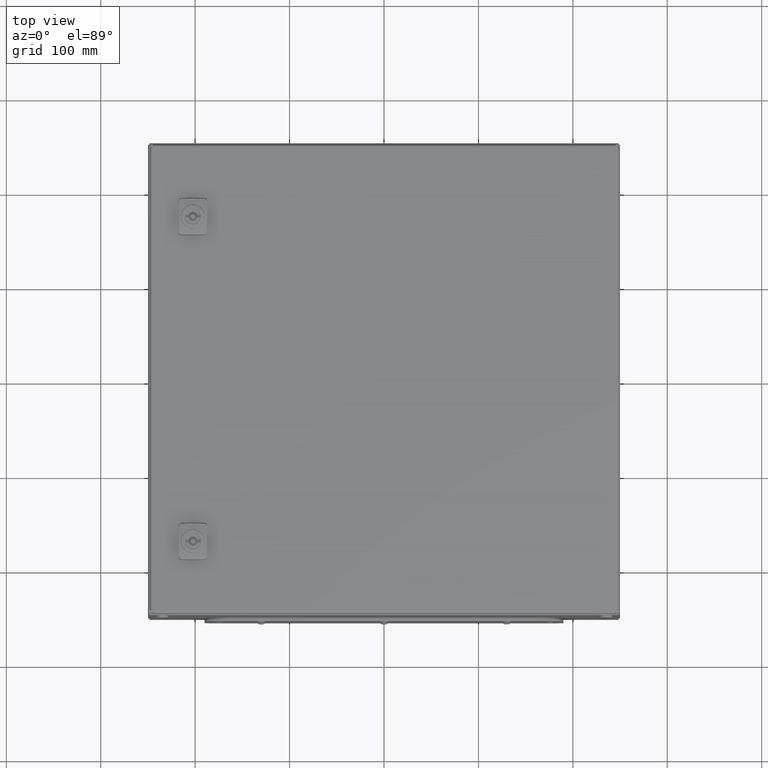
[diagram: clean part render]
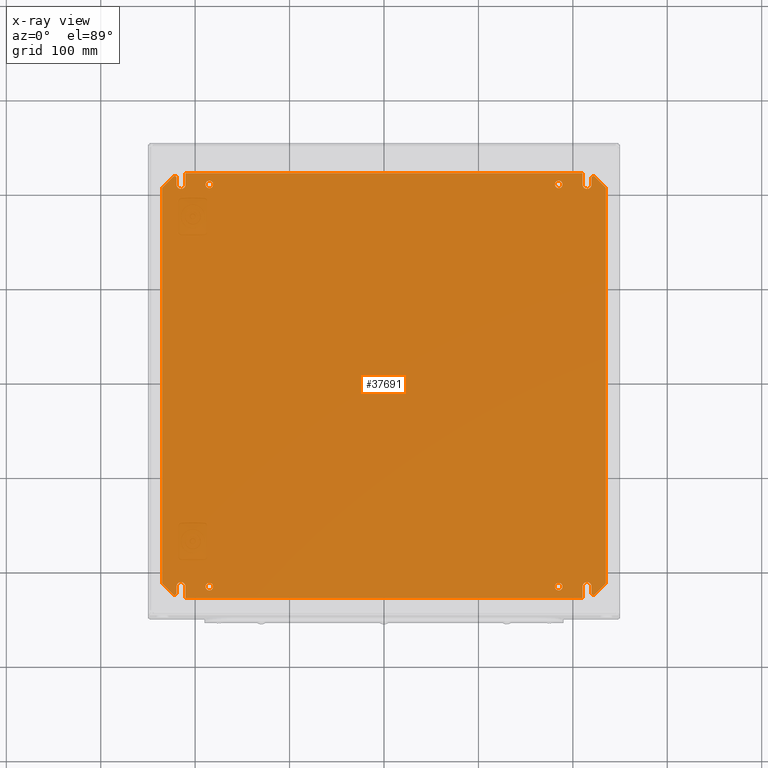
[diagram: x-ray — body ghosted, one internal face saturated and labeled with its STEP entity id]
A machine part, top view, then the same camera in x-ray: the body is ghosted and one INTERNAL B-rep face — a face not visible from any outside direction — is saturated and labeled: STEP entity #37691.
In plain terms, the highlighted planar face has unit normal (0, 0, 1).
Its self-contained STEP definition (entity closure, byte-faithful):
#9817 = CARTESIAN_POINT ( 'NONE',  ( -223.1642135623731900, -221.4142135623731100, 2.499999999997726300 ) ) ;
#12761 = VERTEX_POINT ( 'NONE', #9817 ) ;
#20797 = CARTESIAN_POINT ( 'NONE',  ( -181.0000000000000900, -212.9999999999999700, 2.499999999997726300 ) ) ;
#20798 = DIRECTION ( 'NONE',  ( -1.000000000000000000, 0.0000000000000000000, 0.0000000000000000000 ) ) ;
#20799 = DIRECTION ( 'NONE',  ( 0.0000000000000000000, 0.0000000000000000000, 1.000000000000000000 ) ) ;
#20800 = CARTESIAN_POINT ( 'NONE',  ( -185.0000000000000900, -212.9999999999999700, 2.499999999997726300 ) ) ;
#20801 = AXIS2_PLACEMENT_3D ( 'NONE', #20800, #20799, #20798 ) ;
#20802 = CIRCLE ( 'NONE', #20801, 4.000000000000003600 ) ;
#20803 = CARTESIAN_POINT ( 'NONE',  ( -189.0000000000000900, -212.9999999999999700, 2.499999999997726300 ) ) ;
#20805 = CARTESIAN_POINT ( 'NONE',  ( -219.7500000000000600, -219.9999999999999700, 2.499999999997726300 ) ) ;
#20806 = DIRECTION ( 'NONE',  ( 1.000000000000000000, 0.0000000000000000000, 0.0000000000000000000 ) ) ;
#20807 = DIRECTION ( 'NONE',  ( 0.0000000000000000000, 0.0000000000000000000, -1.000000000000000000 ) ) ;
#20808 = CARTESIAN_POINT ( 'NONE',  ( -221.7500000000000900, -219.9999999999999700, 2.499999999997726300 ) ) ;
#20809 = AXIS2_PLACEMENT_3D ( 'NONE', #20808, #20807, #20806 ) ;
#20810 = CIRCLE ( 'NONE', #20809, 2.000000000000029300 ) ;
#20826 = CARTESIAN_POINT ( 'NONE',  ( -181.0000000000000900, 212.9999999999999700, 2.499999999997726300 ) ) ;
#20827 = DIRECTION ( 'NONE',  ( -1.000000000000000000, 0.0000000000000000000, 0.0000000000000000000 ) ) ;
#20828 = DIRECTION ( 'NONE',  ( 0.0000000000000000000, 0.0000000000000000000, -1.000000000000000000 ) ) ;
#20829 = CARTESIAN_POINT ( 'NONE',  ( -185.0000000000000900, 212.9999999999999700, 2.499999999997726300 ) ) ;
#20830 = AXIS2_PLACEMENT_3D ( 'NONE', #20829, #20828, #20827 ) ;
#20831 = CIRCLE ( 'NONE', #20830, 4.000000000000003600 ) ;
#20832 = CARTESIAN_POINT ( 'NONE',  ( -189.0000000000000900, 212.9999999999999700, 2.499999999997726300 ) ) ;
#20837 = DIRECTION ( 'NONE',  ( 1.000000000000000000, 0.0000000000000000000, 0.0000000000000000000 ) ) ;
#20838 = DIRECTION ( 'NONE',  ( 0.0000000000000000000, 0.0000000000000000000, 1.000000000000000000 ) ) ;
#20839 = CARTESIAN_POINT ( 'NONE',  ( 185.0000000000000900, 212.9999999999999700, 2.499999999997726300 ) ) ;
#20840 = AXIS2_PLACEMENT_3D ( 'NONE', #20839, #20838, #20837 ) ;
#20841 = CIRCLE ( 'NONE', #20840, 4.000000000000003600 ) ;
#20842 = CARTESIAN_POINT ( 'NONE',  ( 181.0000000000000900, 212.9999999999999700, 2.499999999997726300 ) ) ;
#20854 = DIRECTION ( 'NONE',  ( 1.000000000000000000, 0.0000000000000000000, 0.0000000000000000000 ) ) ;
#20855 = DIRECTION ( 'NONE',  ( 0.0000000000000000000, 0.0000000000000000000, 1.000000000000000000 ) ) ;
#20856 = CARTESIAN_POINT ( 'NONE',  ( 185.0000000000000900, 212.9999999999999700, 2.499999999997726300 ) ) ;
#20857 = AXIS2_PLACEMENT_3D ( 'NONE', #20856, #20855, #20854 ) ;
#20858 = CIRCLE ( 'NONE', #20857, 4.000000000000003600 ) ;
#20859 = DIRECTION ( 'NONE',  ( 1.000000000000000000, 0.0000000000000000000, 0.0000000000000000000 ) ) ;
#20860 = DIRECTION ( 'NONE',  ( 0.0000000000000000000, 0.0000000000000000000, -1.000000000000000000 ) ) ;
#20861 = CARTESIAN_POINT ( 'NONE',  ( 185.0000000000000900, -212.9999999999999700, 2.499999999997726300 ) ) ;
#20862 = AXIS2_PLACEMENT_3D ( 'NONE', #20861, #20860, #20859 ) ;
#20863 = CIRCLE ( 'NONE', #20862, 4.000000000000003600 ) ;
#20864 = DIRECTION ( 'NONE',  ( -1.000000000000000000, 0.0000000000000000000, 0.0000000000000000000 ) ) ;
#20865 = DIRECTION ( 'NONE',  ( 0.0000000000000000000, 0.0000000000000000000, 1.000000000000000000 ) ) ;
#20866 = CARTESIAN_POINT ( 'NONE',  ( -185.0000000000000900, -212.9999999999999700, 2.499999999997726300 ) ) ;
#20867 = AXIS2_PLACEMENT_3D ( 'NONE', #20866, #20865, #20864 ) ;
#20868 = CIRCLE ( 'NONE', #20867, 4.000000000000003600 ) ;
#20876 = DIRECTION ( 'NONE',  ( -1.000000000000000000, 0.0000000000000000000, 0.0000000000000000000 ) ) ;
#20877 = DIRECTION ( 'NONE',  ( 0.0000000000000000000, 0.0000000000000000000, -1.000000000000000000 ) ) ;
#20878 = AXIS2_PLACEMENT_3D ( 'NONE', #20884, #20877, #20876 ) ;
#20879 = CIRCLE ( 'NONE', #20878, 4.000000000000003600 ) ;
#20884 = CARTESIAN_POINT ( 'NONE',  ( -185.0000000000000900, 212.9999999999999700, 2.499999999997726300 ) ) ;
#20887 = DIRECTION ( 'NONE',  ( 1.000000000000000000, 0.0000000000000000000, 0.0000000000000000000 ) ) ;
#20888 = DIRECTION ( 'NONE',  ( 0.0000000000000000000, 0.0000000000000000000, 1.000000000000000000 ) ) ;
#20889 = CARTESIAN_POINT ( 'NONE',  ( -234.9999999999999700, -225.0000000000000000, 2.500000000000000000 ) ) ;
#20890 = AXIS2_PLACEMENT_3D ( 'NONE', #20889, #20888, #20887 ) ;
#20891 = PLANE ( 'NONE',  #20890 ) ;
#20892 = FACE_OUTER_BOUND ( 'NONE', #37676, .T. ) ;
#20893 = FACE_BOUND ( 'NONE', #37671, .T. ) ;
#20894 = FACE_BOUND ( 'NONE', #37665, .T. ) ;
#20895 = FACE_BOUND ( 'NONE', #37657, .T. ) ;
#20896 = FACE_BOUND ( 'NONE', #37694, .T. ) ;
#20901 = CARTESIAN_POINT ( 'NONE',  ( 189.0000000000000900, 212.9999999999999700, 2.499999999997726300 ) ) ;
#20902 = CARTESIAN_POINT ( 'NONE',  ( 210.2500000000001100, -212.9999999999999700, 2.499999999997726300 ) ) ;
#20903 = DIRECTION ( 'NONE',  ( 2.312964634635746200E-015, -1.000000000000000000, 0.0000000000000000000 ) ) ;
#20904 = VECTOR ( 'NONE', #20903, 1000.000000000000000 ) ;
#20905 = CARTESIAN_POINT ( 'NONE',  ( 210.2500000000000900, 224.9999999999999400, 2.499999999997726300 ) ) ;
#20906 = LINE ( 'NONE', #20905, #20904 ) ;
#20907 = CARTESIAN_POINT ( 'NONE',  ( 210.2500000000001100, 212.9999999999999700, 2.499999999997726300 ) ) ;
#20908 = DIRECTION ( 'NONE',  ( 1.000000000000000000, 0.0000000000000000000, 0.0000000000000000000 ) ) ;
#20909 = DIRECTION ( 'NONE',  ( 0.0000000000000000000, 0.0000000000000000000, 1.000000000000000000 ) ) ;
#20910 = CARTESIAN_POINT ( 'NONE',  ( 215.0000000000000900, 212.9999999999999700, 2.499999999997726300 ) ) ;
#20911 = AXIS2_PLACEMENT_3D ( 'NONE', #20910, #20909, #20908 ) ;
#20912 = CIRCLE ( 'NONE', #20911, 4.749999999999976900 ) ;
#20914 = CARTESIAN_POINT ( 'NONE',  ( 219.7500000000000900, 212.9999999999999700, 2.499999999997726300 ) ) ;
#20915 = DIRECTION ( 'NONE',  ( 0.0000000000000000000, 1.000000000000000000, 0.0000000000000000000 ) ) ;
#20916 = VECTOR ( 'NONE', #20915, 1000.000000000000000 ) ;
#20917 = CARTESIAN_POINT ( 'NONE',  ( 219.7500000000000900, 212.9999999999999700, 2.499999999997726300 ) ) ;
#20918 = LINE ( 'NONE', #20917, #20916 ) ;
#20923 = CARTESIAN_POINT ( 'NONE',  ( 189.0000000000000900, -212.9999999999999700, 2.499999999997726300 ) ) ;
#20924 = DIRECTION ( 'NONE',  ( 1.000000000000000000, 0.0000000000000000000, 0.0000000000000000000 ) ) ;
#20925 = DIRECTION ( 'NONE',  ( 0.0000000000000000000, 0.0000000000000000000, -1.000000000000000000 ) ) ;
#20926 = CARTESIAN_POINT ( 'NONE',  ( 185.0000000000000900, -212.9999999999999700, 2.499999999997726300 ) ) ;
#20927 = AXIS2_PLACEMENT_3D ( 'NONE', #20926, #20925, #20924 ) ;
#20928 = CIRCLE ( 'NONE', #20927, 4.000000000000003600 ) ;
#20929 = CARTESIAN_POINT ( 'NONE',  ( 181.0000000000000900, -212.9999999999999700, 2.499999999997726300 ) ) ;
#20934 = CIRCLE ( 'NONE', #20998, 4.749999999999976900 ) ;
#20935 = CARTESIAN_POINT ( 'NONE',  ( -219.7500000000000900, -212.9999999999999700, 2.499999999997726300 ) ) ;
#20936 = DIRECTION ( 'NONE',  ( 0.0000000000000000000, -1.000000000000000000, 0.0000000000000000000 ) ) ;
#20937 = VECTOR ( 'NONE', #20936, 1000.000000000000000 ) ;
#20938 = CARTESIAN_POINT ( 'NONE',  ( -219.7500000000000900, -212.9999999999999700, 2.499999999997726300 ) ) ;
#20939 = LINE ( 'NONE', #20938, #20937 ) ;
#20940 = DIRECTION ( 'NONE',  ( 0.0000000000000000000, 1.000000000000000000, 0.0000000000000000000 ) ) ;
#20941 = VECTOR ( 'NONE', #20940, 1000.000000000000000 ) ;
#20942 = CARTESIAN_POINT ( 'NONE',  ( 235.0000000000000600, 224.9999999999999400, 2.500000000000000000 ) ) ;
#20943 = LINE ( 'NONE', #20942, #20941 ) ;
#20944 = CARTESIAN_POINT ( 'NONE',  ( 235.0000000000000900, -209.5784271247462100, 2.499999999997726300 ) ) ;
#20945 = DIRECTION ( 'NONE',  ( 0.7071067811865474600, 0.7071067811865474600, 0.0000000000000000000 ) ) ;
#20946 = VECTOR ( 'NONE', #20945, 1000.000000000000100 ) ;
#20947 = CARTESIAN_POINT ( 'NONE',  ( 223.1642135623731900, -221.4142135623731100, 2.499999999997726300 ) ) ;
#20948 = LINE ( 'NONE', #20947, #20946 ) ;
#20949 = CARTESIAN_POINT ( 'NONE',  ( 223.1642135623731900, -221.4142135623731100, 2.499999999997726300 ) ) ;
#20950 = DIRECTION ( 'NONE',  ( -1.000000000000000000, 0.0000000000000000000, 0.0000000000000000000 ) ) ;
#20951 = DIRECTION ( 'NONE',  ( 0.0000000000000000000, 0.0000000000000000000, 1.000000000000000000 ) ) ;
#20952 = CARTESIAN_POINT ( 'NONE',  ( 221.7500000000000900, -219.9999999999999700, 2.499999999997726300 ) ) ;
#20953 = AXIS2_PLACEMENT_3D ( 'NONE', #20952, #20951, #20950 ) ;
#20954 = CIRCLE ( 'NONE', #20953, 2.000000000000029300 ) ;
#20956 = CARTESIAN_POINT ( 'NONE',  ( 219.7500000000000600, -219.9999999999999700, 2.499999999997726300 ) ) ;
#20957 = DIRECTION ( 'NONE',  ( 0.0000000000000000000, -1.000000000000000000, 0.0000000000000000000 ) ) ;
#20958 = VECTOR ( 'NONE', #20957, 1000.000000000000000 ) ;
#20959 = CARTESIAN_POINT ( 'NONE',  ( 219.7500000000000900, -212.9999999999999700, 2.499999999997726300 ) ) ;
#20960 = LINE ( 'NONE', #20959, #20958 ) ;
#20961 = CARTESIAN_POINT ( 'NONE',  ( 219.7500000000000900, -212.9999999999999700, 2.499999999997726300 ) ) ;
#20962 = DIRECTION ( 'NONE',  ( 1.000000000000000000, 0.0000000000000000000, 0.0000000000000000000 ) ) ;
#20963 = DIRECTION ( 'NONE',  ( 0.0000000000000000000, 0.0000000000000000000, -1.000000000000000000 ) ) ;
#20964 = CARTESIAN_POINT ( 'NONE',  ( 215.0000000000000900, -212.9999999999999700, 2.499999999997726300 ) ) ;
#20965 = AXIS2_PLACEMENT_3D ( 'NONE', #20964, #20963, #20962 ) ;
#20966 = CIRCLE ( 'NONE', #20965, 4.749999999999976900 ) ;
#20967 = CARTESIAN_POINT ( 'NONE',  ( -235.0000000000000900, 209.5784271247462100, 2.499999999997726300 ) ) ;
#20968 = DIRECTION ( 'NONE',  ( -0.7071067811865474600, -0.7071067811865474600, 0.0000000000000000000 ) ) ;
#20969 = VECTOR ( 'NONE', #20968, 1000.000000000000100 ) ;
#20970 = CARTESIAN_POINT ( 'NONE',  ( -223.1642135623731900, 221.4142135623731100, 2.499999999997726300 ) ) ;
#20971 = LINE ( 'NONE', #20970, #20969 ) ;
#20972 = CARTESIAN_POINT ( 'NONE',  ( -223.1642135623731900, 221.4142135623731100, 2.499999999997726300 ) ) ;
#20973 = CARTESIAN_POINT ( 'NONE',  ( -219.7500000000000600, 219.9999999999999700, 2.499999999997726300 ) ) ;
#20974 = DIRECTION ( 'NONE',  ( 1.000000000000000000, 0.0000000000000000000, 0.0000000000000000000 ) ) ;
#20975 = DIRECTION ( 'NONE',  ( 0.0000000000000000000, 0.0000000000000000000, 1.000000000000000000 ) ) ;
#20976 = CARTESIAN_POINT ( 'NONE',  ( -221.7500000000000900, 219.9999999999999700, 2.499999999997726300 ) ) ;
#20977 = AXIS2_PLACEMENT_3D ( 'NONE', #20976, #20975, #20974 ) ;
#20978 = CIRCLE ( 'NONE', #20977, 2.000000000000029300 ) ;
#20979 = DIRECTION ( 'NONE',  ( 2.312964634635746200E-015, 1.000000000000000000, 0.0000000000000000000 ) ) ;
#20980 = VECTOR ( 'NONE', #20979, 1000.000000000000000 ) ;
#20981 = CARTESIAN_POINT ( 'NONE',  ( 210.2500000000000900, -224.9999999999999400, 2.499999999997726300 ) ) ;
#20982 = LINE ( 'NONE', #20981, #20980 ) ;
#20983 = CARTESIAN_POINT ( 'NONE',  ( 210.2500000000000900, -224.9999999999999400, 2.499999999997726300 ) ) ;
#20984 = DIRECTION ( 'NONE',  ( 1.000000000000000000, 1.181088324069315400E-016, 0.0000000000000000000 ) ) ;
#20985 = VECTOR ( 'NONE', #20984, 1000.000000000000000 ) ;
#20986 = CARTESIAN_POINT ( 'NONE',  ( -234.9999999999999700, -225.0000000000000000, 2.500000000000000000 ) ) ;
#20987 = LINE ( 'NONE', #20986, #20985 ) ;
#20988 = CARTESIAN_POINT ( 'NONE',  ( -210.2500000000000900, -224.9999999999999400, 2.499999999997726300 ) ) ;
#20989 = DIRECTION ( 'NONE',  ( -2.312964634635746200E-015, 1.000000000000000000, 0.0000000000000000000 ) ) ;
#20990 = VECTOR ( 'NONE', #20989, 1000.000000000000000 ) ;
#20992 = CARTESIAN_POINT ( 'NONE',  ( -210.2500000000000900, -224.9999999999999400, 2.499999999997726300 ) ) ;
#20993 = LINE ( 'NONE', #20992, #20990 ) ;
#20994 = CARTESIAN_POINT ( 'NONE',  ( -210.2500000000001100, -212.9999999999999700, 2.499999999997726300 ) ) ;
#20995 = DIRECTION ( 'NONE',  ( -1.000000000000000000, 0.0000000000000000000, 0.0000000000000000000 ) ) ;
#20996 = DIRECTION ( 'NONE',  ( 0.0000000000000000000, 0.0000000000000000000, 1.000000000000000000 ) ) ;
#20997 = CARTESIAN_POINT ( 'NONE',  ( -215.0000000000000900, -212.9999999999999700, 2.499999999997726300 ) ) ;
#20998 = AXIS2_PLACEMENT_3D ( 'NONE', #20997, #20996, #20995 ) ;
#21025 = DIRECTION ( 'NONE',  ( -0.7071067811865474600, 0.7071067811865474600, 0.0000000000000000000 ) ) ;
#21026 = VECTOR ( 'NONE', #21025, 1000.000000000000100 ) ;
#21027 = CARTESIAN_POINT ( 'NONE',  ( -223.1642135623731900, -221.4142135623731100, 2.499999999997726300 ) ) ;
#21028 = LINE ( 'NONE', #21027, #21026 ) ;
#21029 = CARTESIAN_POINT ( 'NONE',  ( -234.9999999999999700, -209.5784271247463600, 2.500000000000000000 ) ) ;
#21030 = DIRECTION ( 'NONE',  ( 2.467162276944792900E-016, -1.000000000000000000, 0.0000000000000000000 ) ) ;
#21032 = VECTOR ( 'NONE', #21030, 1000.000000000000000 ) ;
#21033 = CARTESIAN_POINT ( 'NONE',  ( -235.0000000000000600, 224.9999999999998900, 2.500000000000000000 ) ) ;
#21034 = LINE ( 'NONE', #21033, #21032 ) ;
#21040 = DIRECTION ( 'NONE',  ( 0.0000000000000000000, 1.000000000000000000, 0.0000000000000000000 ) ) ;
#21041 = VECTOR ( 'NONE', #21040, 1000.000000000000000 ) ;
#21042 = CARTESIAN_POINT ( 'NONE',  ( -219.7500000000000900, 212.9999999999999700, 2.499999999997726300 ) ) ;
#21043 = LINE ( 'NONE', #21042, #21041 ) ;
#21044 = CARTESIAN_POINT ( 'NONE',  ( -219.7500000000000900, 212.9999999999999700, 2.499999999997726300 ) ) ;
#21045 = DIRECTION ( 'NONE',  ( -1.000000000000000000, 0.0000000000000000000, 0.0000000000000000000 ) ) ;
#21046 = DIRECTION ( 'NONE',  ( 0.0000000000000000000, 0.0000000000000000000, -1.000000000000000000 ) ) ;
#21047 = CARTESIAN_POINT ( 'NONE',  ( -215.0000000000000900, 212.9999999999999700, 2.499999999997726300 ) ) ;
#21048 = AXIS2_PLACEMENT_3D ( 'NONE', #21047, #21046, #21045 ) ;
#21049 = CIRCLE ( 'NONE', #21048, 4.749999999999976900 ) ;
#21050 = CARTESIAN_POINT ( 'NONE',  ( -210.2500000000001100, 212.9999999999999700, 2.499999999997726300 ) ) ;
#21051 = DIRECTION ( 'NONE',  ( -2.312964634635746200E-015, -1.000000000000000000, 0.0000000000000000000 ) ) ;
#21052 = VECTOR ( 'NONE', #21051, 1000.000000000000000 ) ;
#21053 = CARTESIAN_POINT ( 'NONE',  ( -210.2500000000000900, 224.9999999999999400, 2.499999999997726300 ) ) ;
#21054 = LINE ( 'NONE', #21053, #21052 ) ;
#21055 = CARTESIAN_POINT ( 'NONE',  ( -210.2500000000000900, 224.9999999999998900, 2.500000000000000000 ) ) ;
#21056 = DIRECTION ( 'NONE',  ( -1.000000000000000000, -1.181088324069315200E-016, 0.0000000000000000000 ) ) ;
#21057 = VECTOR ( 'NONE', #21056, 1000.000000000000000 ) ;
#21058 = CARTESIAN_POINT ( 'NONE',  ( -235.0000000000000600, 224.9999999999998900, 2.500000000000000000 ) ) ;
#21059 = LINE ( 'NONE', #21058, #21057 ) ;
#21060 = CARTESIAN_POINT ( 'NONE',  ( 210.2500000000000900, 224.9999999999999400, 2.499999999997726300 ) ) ;
#21083 = CARTESIAN_POINT ( 'NONE',  ( 219.7500000000000600, 219.9999999999999700, 2.499999999997726300 ) ) ;
#21084 = DIRECTION ( 'NONE',  ( -1.000000000000000000, 0.0000000000000000000, 0.0000000000000000000 ) ) ;
#21085 = DIRECTION ( 'NONE',  ( 0.0000000000000000000, 0.0000000000000000000, -1.000000000000000000 ) ) ;
#21086 = CARTESIAN_POINT ( 'NONE',  ( 221.7500000000000900, 219.9999999999999700, 2.499999999997726300 ) ) ;
#21087 = AXIS2_PLACEMENT_3D ( 'NONE', #21086, #21085, #21084 ) ;
#21088 = CIRCLE ( 'NONE', #21087, 2.000000000000029300 ) ;
#21089 = CARTESIAN_POINT ( 'NONE',  ( 223.1642135623731900, 221.4142135623731100, 2.499999999997726300 ) ) ;
#21090 = DIRECTION ( 'NONE',  ( 0.7071067811865474600, -0.7071067811865474600, 0.0000000000000000000 ) ) ;
#21091 = VECTOR ( 'NONE', #21090, 1000.000000000000100 ) ;
#21092 = CARTESIAN_POINT ( 'NONE',  ( 223.1642135623731900, 221.4142135623731100, 2.499999999997726300 ) ) ;
#21093 = LINE ( 'NONE', #21092, #21091 ) ;
#21094 = CARTESIAN_POINT ( 'NONE',  ( 235.0000000000000900, 209.5784271247462100, 2.499999999997726300 ) ) ;
#37587 = VERTEX_POINT ( 'NONE', #20803 ) ;
#37592 = EDGE_CURVE ( 'NONE', #37587, #37595, #20802, .T. ) ;
#37595 = VERTEX_POINT ( 'NONE', #20797 ) ;
#37625 = VERTEX_POINT ( 'NONE', #20832 ) ;
#37629 = EDGE_CURVE ( 'NONE', #37631, #37625, #20831, .T. ) ;
#37631 = VERTEX_POINT ( 'NONE', #20826 ) ;
#37650 = ORIENTED_EDGE ( 'NONE', *, *, #37653, .F. ) ;
#37653 = EDGE_CURVE ( 'NONE', #37655, #12761, #20810, .T. ) ;
#37655 = VERTEX_POINT ( 'NONE', #20805 ) ;
#37657 = EDGE_LOOP ( 'NONE', ( #37659, #37663 ) ) ;
#37659 = ORIENTED_EDGE ( 'NONE', *, *, #37662, .F. ) ;
#37662 = EDGE_CURVE ( 'NONE', #37595, #37587, #20868, .T. ) ;
#37663 = ORIENTED_EDGE ( 'NONE', *, *, #37592, .F. ) ;
#37665 = EDGE_LOOP ( 'NONE', ( #37667, #37669 ) ) ;
#37667 = ORIENTED_EDGE ( 'NONE', *, *, #37717, .T. ) ;
#37669 = ORIENTED_EDGE ( 'NONE', *, *, #37670, .T. ) ;
#37670 = EDGE_CURVE ( 'NONE', #37712, #37719, #20863, .T. ) ;
#37671 = EDGE_LOOP ( 'NONE', ( #37673, #37675 ) ) ;
#37673 = ORIENTED_EDGE ( 'NONE', *, *, #37674, .F. ) ;
#37674 = EDGE_CURVE ( 'NONE', #37687, #37683, #20858, .T. ) ;
#37675 = ORIENTED_EDGE ( 'NONE', *, *, #37686, .F. ) ;
#37676 = EDGE_LOOP ( 'NONE', ( #37774, #37779, #37783, #37786, #37650, #37756, #37761, #37764, #37767, #37771, #37735, #37739, #37745, #37749, #37753, #37838, #37842, #37846, #37727, #37731, #37819, #37823, #37827, #37830 ) ) ;
#37683 = VERTEX_POINT ( 'NONE', #20842 ) ;
#37686 = EDGE_CURVE ( 'NONE', #37683, #37687, #20841, .T. ) ;
#37687 = VERTEX_POINT ( 'NONE', #20901 ) ;
#37691 = ADVANCED_FACE ( 'NONE', ( #20896, #20895, #20894, #20893, #20892 ), #20891, .T. ) ;
#37694 = EDGE_LOOP ( 'NONE', ( #37695, #37697 ) ) ;
#37695 = ORIENTED_EDGE ( 'NONE', *, *, #37629, .T. ) ;
#37697 = ORIENTED_EDGE ( 'NONE', *, *, #37699, .T. ) ;
#37699 = EDGE_CURVE ( 'NONE', #37625, #37631, #20879, .T. ) ;
#37712 = VERTEX_POINT ( 'NONE', #20929 ) ;
#37717 = EDGE_CURVE ( 'NONE', #37719, #37712, #20928, .T. ) ;
#37719 = VERTEX_POINT ( 'NONE', #20923 ) ;
#37724 = EDGE_CURVE ( 'NONE', #37726, #37844, #20918, .T. ) ;
#37726 = VERTEX_POINT ( 'NONE', #20914 ) ;
#37727 = ORIENTED_EDGE ( 'NONE', *, *, #37728, .F. ) ;
#37728 = EDGE_CURVE ( 'NONE', #37730, #37726, #20912, .T. ) ;
#37730 = VERTEX_POINT ( 'NONE', #20907 ) ;
#37731 = ORIENTED_EDGE ( 'NONE', *, *, #37732, .F. ) ;
#37732 = EDGE_CURVE ( 'NONE', #37818, #37730, #20906, .T. ) ;
#37734 = VERTEX_POINT ( 'NONE', #20902 ) ;
#37735 = ORIENTED_EDGE ( 'NONE', *, *, #37736, .T. ) ;
#37736 = EDGE_CURVE ( 'NONE', #37734, #37737, #20966, .T. ) ;
#37737 = VERTEX_POINT ( 'NONE', #20961 ) ;
#37739 = ORIENTED_EDGE ( 'NONE', *, *, #37740, .T. ) ;
#37740 = EDGE_CURVE ( 'NONE', #37737, #37742, #20960, .T. ) ;
#37742 = VERTEX_POINT ( 'NONE', #20956 ) ;
#37745 = ORIENTED_EDGE ( 'NONE', *, *, #37747, .T. ) ;
#37747 = EDGE_CURVE ( 'NONE', #37742, #37748, #20954, .T. ) ;
#37748 = VERTEX_POINT ( 'NONE', #20949 ) ;
#37749 = ORIENTED_EDGE ( 'NONE', *, *, #37750, .T. ) ;
#37750 = EDGE_CURVE ( 'NONE', #37748, #37752, #20948, .T. ) ;
#37752 = VERTEX_POINT ( 'NONE', #20944 ) ;
#37753 = ORIENTED_EDGE ( 'NONE', *, *, #37755, .T. ) ;
#37755 = EDGE_CURVE ( 'NONE', #37752, #37837, #20943, .T. ) ;
#37756 = ORIENTED_EDGE ( 'NONE', *, *, #37758, .F. ) ;
#37758 = EDGE_CURVE ( 'NONE', #37759, #37655, #20939, .T. ) ;
#37759 = VERTEX_POINT ( 'NONE', #20935 ) ;
#37761 = ORIENTED_EDGE ( 'NONE', *, *, #37762, .F. ) ;
#37762 = EDGE_CURVE ( 'NONE', #37763, #37759, #20934, .T. ) ;
#37763 = VERTEX_POINT ( 'NONE', #20994 ) ;
#37764 = ORIENTED_EDGE ( 'NONE', *, *, #37765, .F. ) ;
#37765 = EDGE_CURVE ( 'NONE', #37766, #37763, #20993, .T. ) ;
#37766 = VERTEX_POINT ( 'NONE', #20988 ) ;
#37767 = ORIENTED_EDGE ( 'NONE', *, *, #37768, .T. ) ;
#37768 = EDGE_CURVE ( 'NONE', #37766, #37770, #20987, .T. ) ;
#37770 = VERTEX_POINT ( 'NONE', #20983 ) ;
#37771 = ORIENTED_EDGE ( 'NONE', *, *, #37773, .T. ) ;
#37773 = EDGE_CURVE ( 'NONE', #37770, #37734, #20982, .T. ) ;
#37774 = ORIENTED_EDGE ( 'NONE', *, *, #37775, .T. ) ;
#37775 = EDGE_CURVE ( 'NONE', #37777, #37778, #20978, .T. ) ;
#37777 = VERTEX_POINT ( 'NONE', #20973 ) ;
#37778 = VERTEX_POINT ( 'NONE', #20972 ) ;
#37779 = ORIENTED_EDGE ( 'NONE', *, *, #37780, .T. ) ;
#37780 = EDGE_CURVE ( 'NONE', #37778, #37781, #20971, .T. ) ;
#37781 = VERTEX_POINT ( 'NONE', #20967 ) ;
#37783 = ORIENTED_EDGE ( 'NONE', *, *, #37784, .T. ) ;
#37784 = EDGE_CURVE ( 'NONE', #37781, #37785, #21034, .T. ) ;
#37785 = VERTEX_POINT ( 'NONE', #21029 ) ;
#37786 = ORIENTED_EDGE ( 'NONE', *, *, #37788, .F. ) ;
#37788 = EDGE_CURVE ( 'NONE', #12761, #37785, #21028, .T. ) ;
#37818 = VERTEX_POINT ( 'NONE', #21060 ) ;
#37819 = ORIENTED_EDGE ( 'NONE', *, *, #37821, .T. ) ;
#37821 = EDGE_CURVE ( 'NONE', #37818, #37822, #21059, .T. ) ;
#37822 = VERTEX_POINT ( 'NONE', #21055 ) ;
#37823 = ORIENTED_EDGE ( 'NONE', *, *, #37824, .T. ) ;
#37824 = EDGE_CURVE ( 'NONE', #37822, #37826, #21054, .T. ) ;
#37826 = VERTEX_POINT ( 'NONE', #21050 ) ;
#37827 = ORIENTED_EDGE ( 'NONE', *, *, #37828, .T. ) ;
#37828 = EDGE_CURVE ( 'NONE', #37826, #37829, #21049, .T. ) ;
#37829 = VERTEX_POINT ( 'NONE', #21044 ) ;
#37830 = ORIENTED_EDGE ( 'NONE', *, *, #37831, .T. ) ;
#37831 = EDGE_CURVE ( 'NONE', #37829, #37777, #21043, .T. ) ;
#37837 = VERTEX_POINT ( 'NONE', #21094 ) ;
#37838 = ORIENTED_EDGE ( 'NONE', *, *, #37840, .F. ) ;
#37840 = EDGE_CURVE ( 'NONE', #37841, #37837, #21093, .T. ) ;
#37841 = VERTEX_POINT ( 'NONE', #21089 ) ;
#37842 = ORIENTED_EDGE ( 'NONE', *, *, #37843, .F. ) ;
#37843 = EDGE_CURVE ( 'NONE', #37844, #37841, #21088, .T. ) ;
#37844 = VERTEX_POINT ( 'NONE', #21083 ) ;
#37846 = ORIENTED_EDGE ( 'NONE', *, *, #37724, .F. ) ;